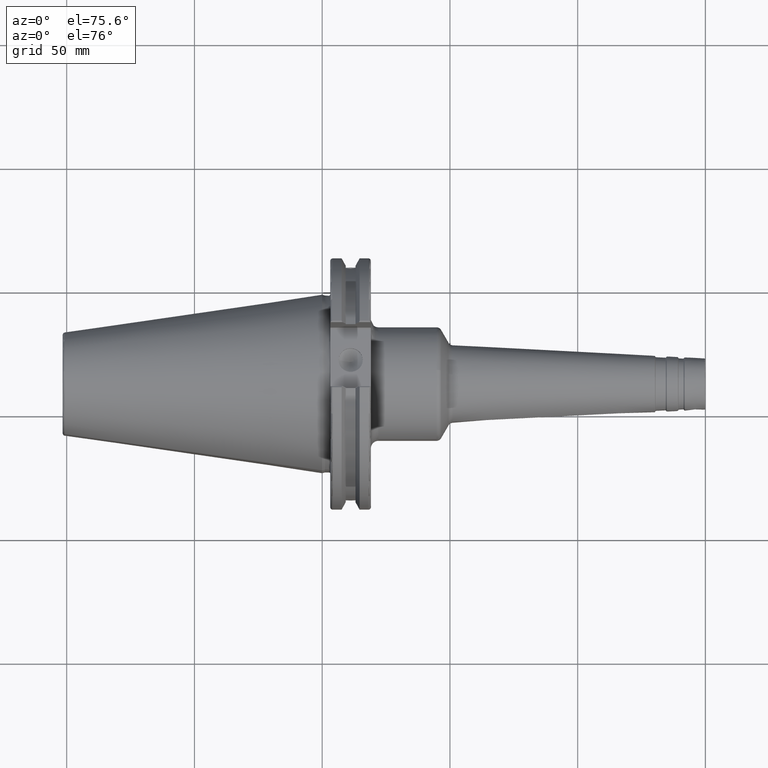
[diagram: clean part render]
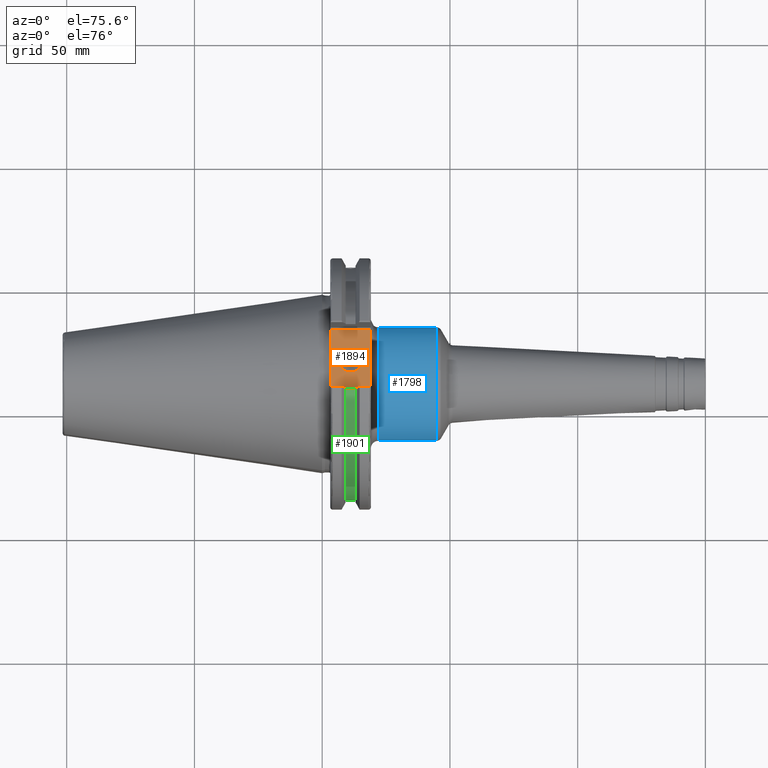
[diagram: same view with three faces highlighted in distinct colors, each labeled with its STEP entity id]
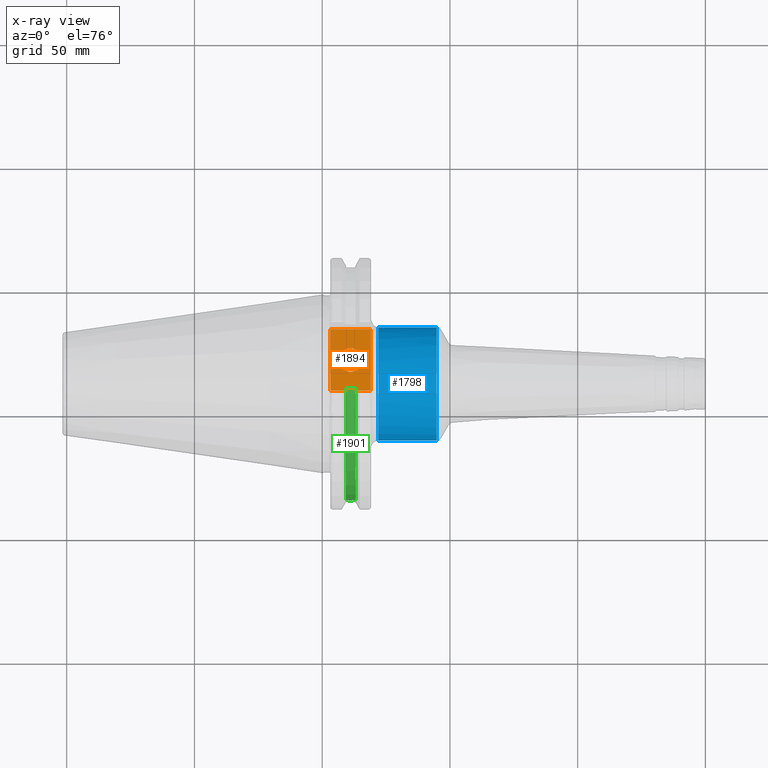
[diagram: x-ray of the same camera — body ghosted, the three highlighted faces saturated]
A machine part, auxiliary view with three faces highlighted in distinct colors.
The next image is the same camera in x-ray (body ghosted, the three faces saturated) — at least one of them is partly hidden behind the body in this view.
Their STEP definitions:

[orange] entity #1894 — the highlighted planar face has unit normal (0, 0, 1).
#112=FACE_BOUND('',#607,.T.);
#147=PLANE('',#2144);
#154=LINE('',#2751,#257);
#209=LINE('',#3481,#312);
#237=LINE('',#3710,#340);
#239=LINE('',#3713,#342);
#257=VECTOR('',#2183,10.);
#312=VECTOR('',#2546,10.);
#340=VECTOR('',#2640,10.);
#342=VECTOR('',#2644,10.);
#482=FACE_OUTER_BOUND('',#606,.T.);
#606=EDGE_LOOP('',(#1740,#1741,#1742,#1743));
#607=EDGE_LOOP('',(#1744));
#732=CIRCLE('',#2136,4.7625);
#749=VERTEX_POINT('',#2748);
#750=VERTEX_POINT('',#2750);
#880=VERTEX_POINT('',#3478);
#881=VERTEX_POINT('',#3480);
#927=VERTEX_POINT('',#3749);
#940=EDGE_CURVE('',#749,#750,#154,.T.);
#1120=EDGE_CURVE('',#880,#881,#209,.T.);
#1183=EDGE_CURVE('',#750,#880,#237,.T.);
#1185=EDGE_CURVE('',#881,#749,#239,.T.);
#1200=EDGE_CURVE('',#927,#927,#732,.T.);
#1740=ORIENTED_EDGE('',*,*,#1183,.F.);
#1741=ORIENTED_EDGE('',*,*,#940,.F.);
#1742=ORIENTED_EDGE('',*,*,#1185,.F.);
#1743=ORIENTED_EDGE('',*,*,#1120,.F.);
#1744=ORIENTED_EDGE('',*,*,#1200,.T.);
#1894=ADVANCED_FACE('',(#482,#112),#147,.T.);
#2136=AXIS2_PLACEMENT_3D('',#3750,#2679,#2680);
#2144=AXIS2_PLACEMENT_3D('',#3759,#2696,#2697);
#2183=DIRECTION('',(0.,-1.,0.));
#2546=DIRECTION('',(0.,1.,0.));
#2640=DIRECTION('',(-1.,1.31581988103722E-16,0.));
#2644=DIRECTION('',(1.,0.,0.));
#2679=DIRECTION('center_axis',(0.,0.,-1.));
#2680=DIRECTION('ref_axis',(1.,0.,0.));
#2696=DIRECTION('center_axis',(0.,0.,1.));
#2697=DIRECTION('ref_axis',(1.,0.,0.));
#2748=CARTESIAN_POINT('',(19.05,12.45,37.719));
#2750=CARTESIAN_POINT('',(19.05,-12.45,37.719));
#2751=CARTESIAN_POINT('',(19.05,0.,37.719));
#3478=CARTESIAN_POINT('',(3.175,-12.45,37.719));
#3480=CARTESIAN_POINT('',(3.175,12.45,37.719));
#3481=CARTESIAN_POINT('',(3.175,24.60625,37.719));
#3710=CARTESIAN_POINT('',(10.63125,-12.45,37.719));
#3713=CARTESIAN_POINT('',(19.06875,12.45,37.719));
#3749=CARTESIAN_POINT('',(6.3716,-5.83238038093927E-16,37.719));
#3750=CARTESIAN_POINT('Origin',(11.1341,0.,37.719));
#3759=CARTESIAN_POINT('Origin',(18.0875,0.,37.719));

[blue] entity #1798 — the highlighted cylindrical surface (bore or boss wall) has radius 22.25 mm, axis along (1, 0, 0).
#151=LINE('',#2740,#254);
#254=VECTOR('',#2174,22.25);
#357=CYLINDRICAL_SURFACE('',#1931,22.25);
#386=FACE_OUTER_BOUND('',#492,.T.);
#492=EDGE_LOOP('',(#1218,#1219,#1220,#1221,#1222,#1223));
#617=CIRCLE('',#1927,22.25);
#620=CIRCLE('',#1930,22.25);
#621=CIRCLE('',#1932,22.25);
#622=CIRCLE('',#1933,22.25);
#741=VERTEX_POINT('',#2729);
#742=VERTEX_POINT('',#2730);
#744=VERTEX_POINT('',#2737);
#745=VERTEX_POINT('',#2738);
#930=EDGE_CURVE('',#741,#742,#617,.T.);
#933=EDGE_CURVE('',#742,#741,#620,.T.);
#934=EDGE_CURVE('',#744,#745,#621,.T.);
#935=EDGE_CURVE('',#744,#741,#151,.T.);
#936=EDGE_CURVE('',#745,#744,#622,.T.);
#1218=ORIENTED_EDGE('',*,*,#934,.F.);
#1219=ORIENTED_EDGE('',*,*,#935,.T.);
#1220=ORIENTED_EDGE('',*,*,#933,.F.);
#1221=ORIENTED_EDGE('',*,*,#930,.F.);
#1222=ORIENTED_EDGE('',*,*,#935,.F.);
#1223=ORIENTED_EDGE('',*,*,#936,.F.);
#1798=ADVANCED_FACE('',(#386),#357,.T.);
#1927=AXIS2_PLACEMENT_3D('',#2731,#2162,#2163);
#1930=AXIS2_PLACEMENT_3D('',#2735,#2168,#2169);
#1931=AXIS2_PLACEMENT_3D('',#2736,#2170,#2171);
#1932=AXIS2_PLACEMENT_3D('',#2739,#2172,#2173);
#1933=AXIS2_PLACEMENT_3D('',#2741,#2175,#2176);
#2162=DIRECTION('center_axis',(-1.,0.,0.));
#2163=DIRECTION('ref_axis',(0.,-1.,-1.22464679914735E-16));
#2168=DIRECTION('center_axis',(-1.,0.,0.));
#2169=DIRECTION('ref_axis',(0.,-1.,-1.22464679914735E-16));
#2170=DIRECTION('center_axis',(1.,0.,0.));
#2171=DIRECTION('ref_axis',(0.,1.,0.));
#2172=DIRECTION('center_axis',(1.,0.,0.));
#2173=DIRECTION('ref_axis',(0.,-1.,1.83697019872103E-16));
#2174=DIRECTION('',(-1.,0.,0.));
#2175=DIRECTION('center_axis',(1.,0.,0.));
#2176=DIRECTION('ref_axis',(0.,-1.,1.83697019872103E-16));
#2729=CARTESIAN_POINT('',(22.05,-22.25,-2.72483912810286E-15));
#2730=CARTESIAN_POINT('',(22.05,-2.72483912810286E-15,-22.25));
#2731=CARTESIAN_POINT('Origin',(22.05,0.,0.));
#2735=CARTESIAN_POINT('Origin',(22.05,0.,0.));
#2736=CARTESIAN_POINT('Origin',(32.5016118750482,0.,0.));
#2737=CARTESIAN_POINT('',(44.7985232117172,-22.25,-2.72483912810286E-15));
#2738=CARTESIAN_POINT('',(44.7985232117172,-2.72483912810286E-15,22.25));
#2739=CARTESIAN_POINT('Origin',(44.7985232117172,0.,0.));
#2740=CARTESIAN_POINT('',(32.5016118750482,-22.25,-2.72483912810286E-15));
#2741=CARTESIAN_POINT('Origin',(44.7985232117172,0.,0.));

[green] entity #1901 — the highlighted cylindrical surface (partial cylindrical patch) has radius 45.6435 mm, axis along (1, 0, 0).
#42=B_SPLINE_CURVE_WITH_KNOTS('',3,(#3114,#3115,#3116,#3117,#3118,#3119,
#3120,#3121,#3122,#3123,#3124,#3125,#3126,#3127),.UNSPECIFIED.,.F.,.F.,
(4,2,2,2,2,2,4),(0.40154831257669,0.474697095495631,0.553813286063443,0.632929476631254,
0.712045667199066,0.791161857766877,0.864310640685818),.UNSPECIFIED.);
#225=LINE('',#3608,#328);
#328=VECTOR('',#2582,10.);
#384=CYLINDRICAL_SURFACE('',#2155,45.6435);
#489=FACE_OUTER_BOUND('',#615,.T.);
#615=EDGE_LOOP('',(#1771,#1772,#1773,#1774));
#739=CIRCLE('',#2154,45.6435);
#740=CIRCLE('',#2156,45.6435);
#820=VERTEX_POINT('',#3111);
#821=VERTEX_POINT('',#3113);
#904=VERTEX_POINT('',#3605);
#905=VERTEX_POINT('',#3607);
#1040=EDGE_CURVE('',#821,#820,#42,.T.);
#1153=EDGE_CURVE('',#905,#904,#225,.T.);
#1211=EDGE_CURVE('',#904,#821,#739,.T.);
#1212=EDGE_CURVE('',#905,#820,#740,.T.);
#1771=ORIENTED_EDGE('',*,*,#1040,.T.);
#1772=ORIENTED_EDGE('',*,*,#1212,.F.);
#1773=ORIENTED_EDGE('',*,*,#1153,.T.);
#1774=ORIENTED_EDGE('',*,*,#1211,.T.);
#1901=ADVANCED_FACE('',(#489),#384,.T.);
#2154=AXIS2_PLACEMENT_3D('',#3774,#2719,#2720);
#2155=AXIS2_PLACEMENT_3D('',#3775,#2721,#2722);
#2156=AXIS2_PLACEMENT_3D('',#3776,#2723,#2724);
#2582=DIRECTION('',(-1.,0.,0.));
#2719=DIRECTION('center_axis',(1.,0.,0.));
#2720=DIRECTION('ref_axis',(0.,0.,-1.));
#2721=DIRECTION('center_axis',(1.,0.,0.));
#2722=DIRECTION('ref_axis',(0.,-0.888619069115281,0.458645996390125));
#2723=DIRECTION('center_axis',(1.,0.,0.));
#2724=DIRECTION('ref_axis',(0.,0.,-1.));
#3111=CARTESIAN_POINT('',(13.0491,-43.1779814500336,-14.7983448449669));
#3113=CARTESIAN_POINT('',(9.2191,-43.1779814500336,-14.7983448449669));
#3114=CARTESIAN_POINT('Ctrl Pts',(9.2191,-43.1779814500335,-14.7983448449669));
#3115=CARTESIAN_POINT('Ctrl Pts',(9.32532177598176,-43.2545173750974,-14.5750315766731));
#3116=CARTESIAN_POINT('Ctrl Pts',(9.47680807557665,-43.3223492818373,-14.3712521044637));
#3117=CARTESIAN_POINT('Ctrl Pts',(9.83560503400179,-43.4340904392251,-14.0300988117073));
#3118=CARTESIAN_POINT('Ctrl Pts',(10.0717203280543,-43.4832903960863,-13.8760243976176));
#3119=CARTESIAN_POINT('Ctrl Pts',(10.5891059167872,-43.54802519266,-13.6715068146718));
#3120=CARTESIAN_POINT('Ctrl Pts',(10.870379364774,-43.5636826100883,-13.6211104428929));
#3121=CARTESIAN_POINT('Ctrl Pts',(11.397820635226,-43.5636826100883,-13.6211104428929));
#3122=CARTESIAN_POINT('Ctrl Pts',(11.6790940832128,-43.54802519266,-13.6715068146718));
#3123=CARTESIAN_POINT('Ctrl Pts',(12.1964796719457,-43.4832903960863,-13.8760243976176));
#3124=CARTESIAN_POINT('Ctrl Pts',(12.4325949659982,-43.4340904392251,-14.0300988117073));
#3125=CARTESIAN_POINT('Ctrl Pts',(12.7913919244233,-43.3223492818373,-14.3712521044637));
#3126=CARTESIAN_POINT('Ctrl Pts',(12.9428782240182,-43.2545173750974,-14.5750315766731));
#3127=CARTESIAN_POINT('Ctrl Pts',(13.0491,-43.1779814500335,-14.7983448449669));
#3605=CARTESIAN_POINT('',(9.2191,-12.95,43.7678716897452));
#3607=CARTESIAN_POINT('',(13.0491,-12.95,43.7678716897452));
#3608=CARTESIAN_POINT('',(11.1341,-12.95,43.7678716897452));
#3774=CARTESIAN_POINT('Origin',(9.2191,0.,0.));
#3775=CARTESIAN_POINT('Origin',(11.1341,0.,0.));
#3776=CARTESIAN_POINT('Origin',(13.0491,0.,0.));